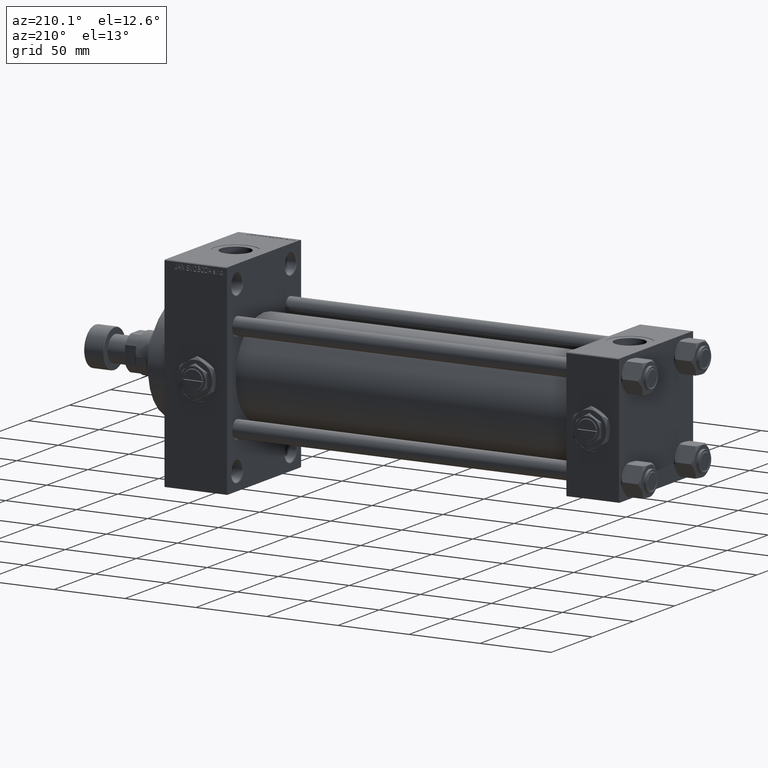
[diagram: clean part render]
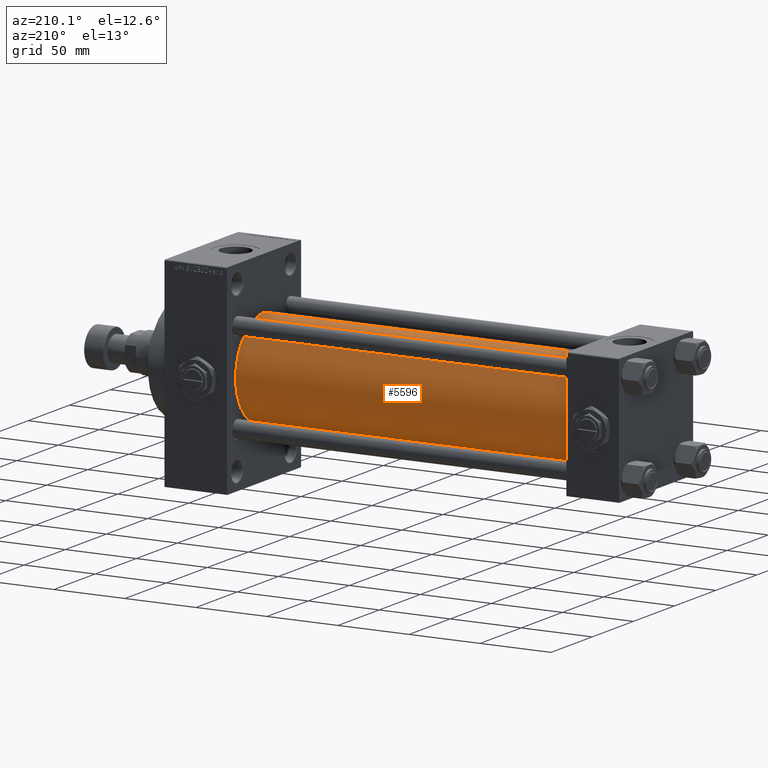
[diagram: same view with one face highlighted and labeled with its STEP entity id]
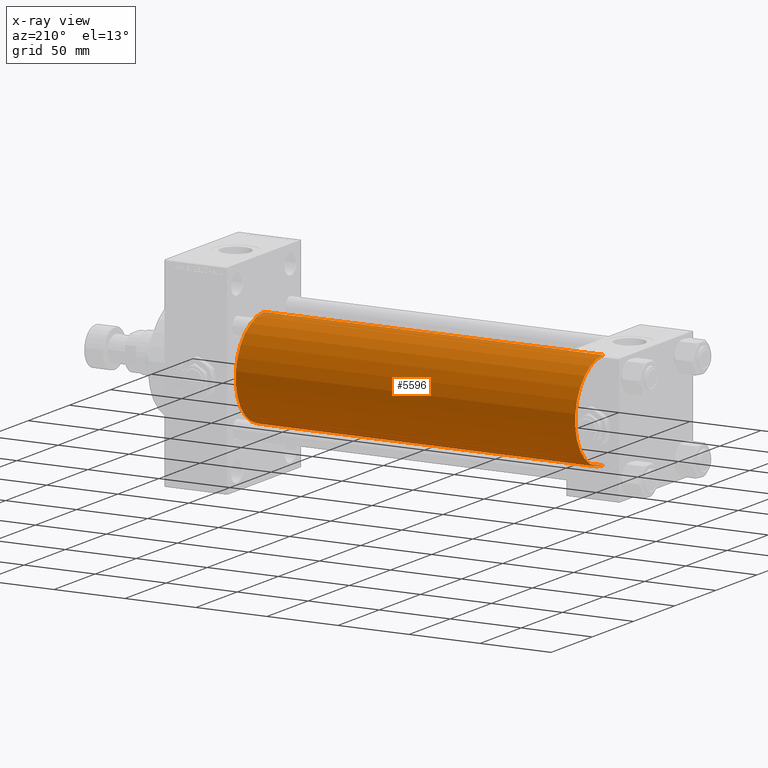
[diagram: x-ray of the same camera — body ghosted, the highlighted face saturated]
A machine part, auxiliary view. The second image highlights one B-rep face of the part: STEP entity #5596.
The next image is the same camera in x-ray: the body ghosted, the highlighted face saturated — about 0% of this face is hidden behind the body in this view.
In plain terms, the highlighted cylindrical surface (partial cylindrical patch) has radius 34.5 mm, axis along (-1, -0, -0).
Its self-contained STEP definition (entity closure, byte-faithful):
#214 = AXIS2_PLACEMENT_3D ( 'NONE', #27366, #42734, #8256 ) ;
#5596 = ADVANCED_FACE ( 'NONE', ( #23023 ), #47134, .T. ) ;
#5880 = CARTESIAN_POINT ( 'NONE',  ( 275.9999999999999432, 1.622946243093157097E-15, -34.50000000000000000 ) ) ;
#5923 = CARTESIAN_POINT ( 'NONE',  ( 275.9999999999999432, -2.602085213965210642E-15, 34.50000000000000000 ) ) ;
#7060 = CARTESIAN_POINT ( 'NONE',  ( 275.9999999999999432, 1.622946243093157097E-15, -34.50000000000000000 ) ) ;
#8235 = EDGE_LOOP ( 'NONE', ( #13327, #46534, #46779, #13512 ) ) ;
#8256 = DIRECTION ( 'NONE',  ( 0.000000000000000000, 0.000000000000000000, -1.000000000000000000 ) ) ;
#8536 = CIRCLE ( 'NONE', #21388, 34.50000000000000000 ) ;
#11465 = VERTEX_POINT ( 'NONE', #28961 ) ;
#11972 = EDGE_CURVE ( 'NONE', #12012, #47853, #40409, .T. ) ;
#12012 = VERTEX_POINT ( 'NONE', #5923 ) ;
#12939 = AXIS2_PLACEMENT_3D ( 'NONE', #16688, #40079, #48116 ) ;
#13327 = ORIENTED_EDGE ( 'NONE', *, *, #41627, .F. ) ;
#13512 = ORIENTED_EDGE ( 'NONE', *, *, #11972, .F. ) ;
#15249 = CARTESIAN_POINT ( 'NONE',  ( 37.00000000000000711, -2.602085213965210642E-15, 0.000000000000000000 ) ) ;
#16688 = CARTESIAN_POINT ( 'NONE',  ( 275.9999999999999432, -2.602085213965210642E-15, 0.000000000000000000 ) ) ;
#20813 = EDGE_CURVE ( 'NONE', #11465, #47853, #8536, .T. ) ;
#21388 = AXIS2_PLACEMENT_3D ( 'NONE', #15249, #30586, #45950 ) ;
#21910 = CIRCLE ( 'NONE', #214, 34.50000000000000000 ) ;
#22427 = VECTOR ( 'NONE', #32326, 1000.000000000000000 ) ;
#23023 = FACE_OUTER_BOUND ( 'NONE', #8235, .T. ) ;
#24021 = LINE ( 'NONE', #5880, #22427 ) ;
#27366 = CARTESIAN_POINT ( 'NONE',  ( 275.9999999999999432, -2.602085213965210642E-15, 0.000000000000000000 ) ) ;
#28338 = CARTESIAN_POINT ( 'NONE',  ( 275.9999999999999432, -2.602085213965210642E-15, 34.50000000000000000 ) ) ;
#28587 = DIRECTION ( 'NONE',  ( -1.000000000000000000, -0.000000000000000000, -0.000000000000000000 ) ) ;
#28961 = CARTESIAN_POINT ( 'NONE',  ( 37.00000000000000711, 1.622946243093157097E-15, -34.50000000000000000 ) ) ;
#30586 = DIRECTION ( 'NONE',  ( 1.000000000000000000, -0.000000000000000000, 0.000000000000000000 ) ) ;
#32326 = DIRECTION ( 'NONE',  ( -1.000000000000000000, -0.000000000000000000, -0.000000000000000000 ) ) ;
#32592 = EDGE_CURVE ( 'NONE', #36211, #11465, #24021, .T. ) ;
#36211 = VERTEX_POINT ( 'NONE', #7060 ) ;
#40079 = DIRECTION ( 'NONE',  ( -1.000000000000000000, -0.000000000000000000, -0.000000000000000000 ) ) ;
#40409 = LINE ( 'NONE', #28338, #49301 ) ;
#41627 = EDGE_CURVE ( 'NONE', #36211, #12012, #21910, .T. ) ;
#42734 = DIRECTION ( 'NONE',  ( 1.000000000000000000, 0.000000000000000000, 0.000000000000000000 ) ) ;
#45950 = DIRECTION ( 'NONE',  ( 0.000000000000000000, 0.000000000000000000, 1.000000000000000000 ) ) ;
#46534 = ORIENTED_EDGE ( 'NONE', *, *, #32592, .T. ) ;
#46779 = ORIENTED_EDGE ( 'NONE', *, *, #20813, .T. ) ;
#47134 = CYLINDRICAL_SURFACE ( 'NONE', #12939, 34.50000000000000000 ) ;
#47853 = VERTEX_POINT ( 'NONE', #49519 ) ;
#48116 = DIRECTION ( 'NONE',  ( 0.000000000000000000, 0.000000000000000000, 1.000000000000000000 ) ) ;
#49301 = VECTOR ( 'NONE', #28587, 1000.000000000000000 ) ;
#49519 = CARTESIAN_POINT ( 'NONE',  ( 37.00000000000000711, -2.602085213965210642E-15, 34.50000000000000000 ) ) ;